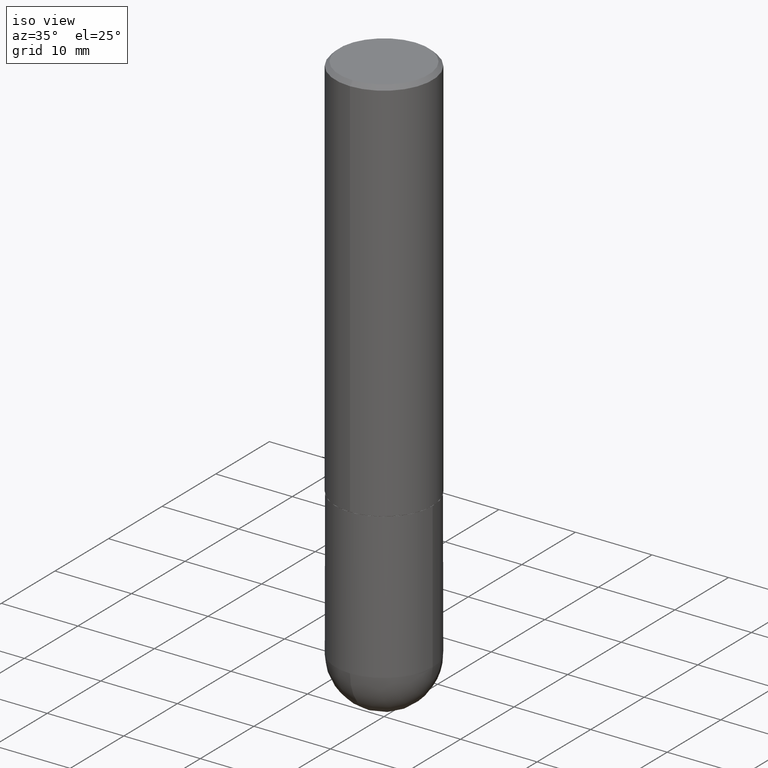
[diagram: clean part render]
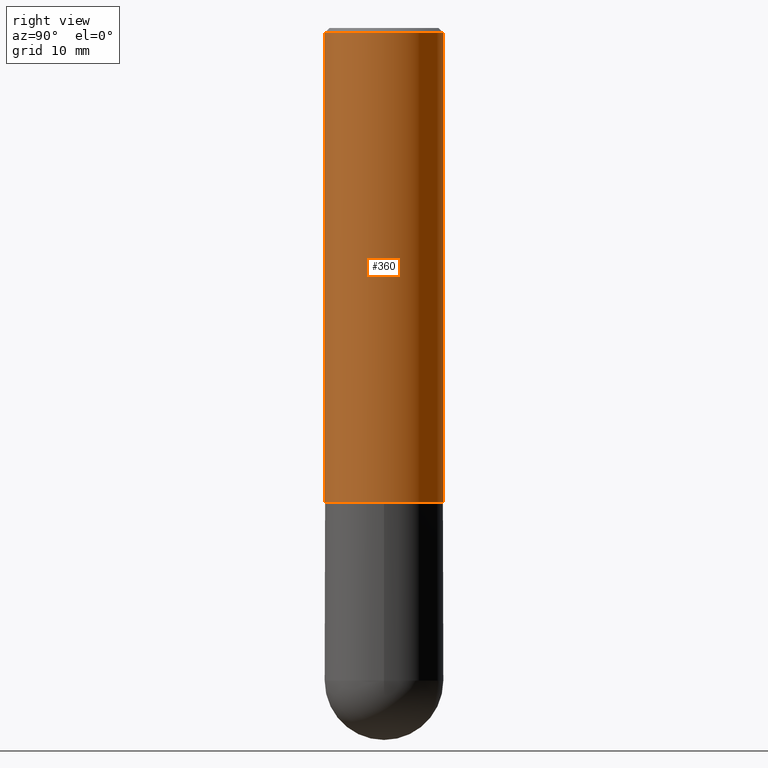
[diagram: tour spotlight — one face highlighted and labeled with its STEP entity id]
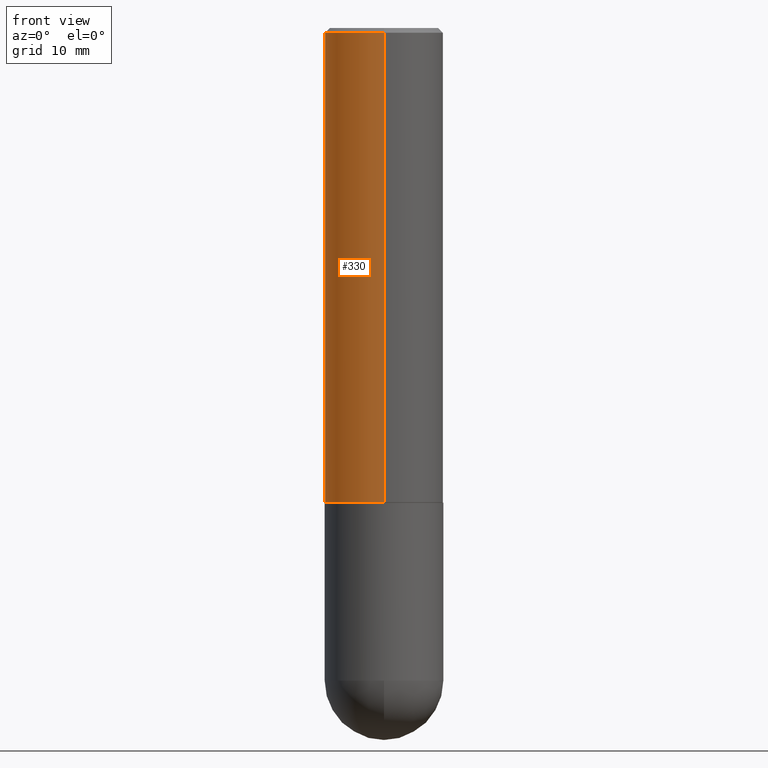
[diagram: tour spotlight — one face highlighted and labeled with its STEP entity id]
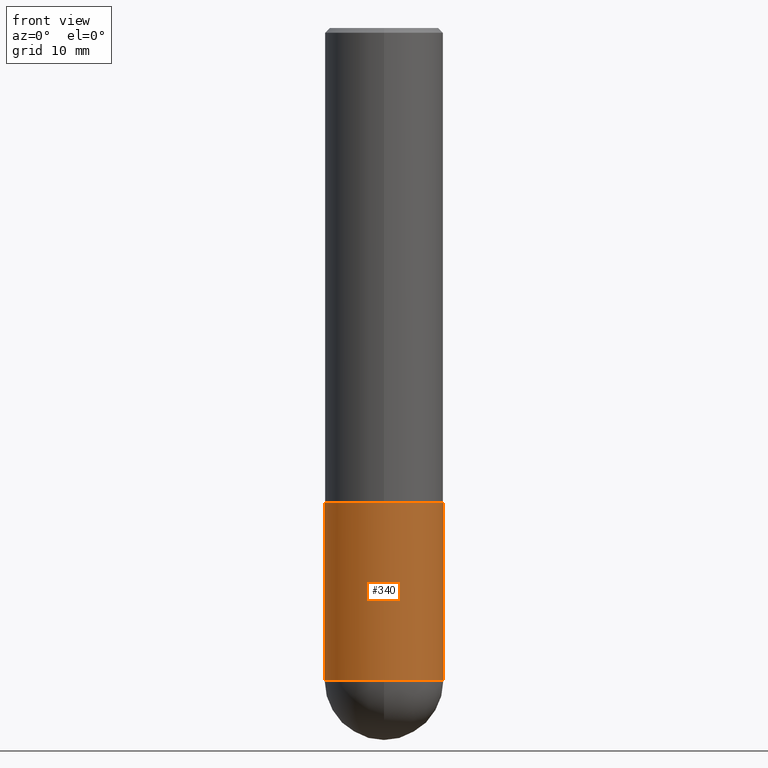
[diagram: tour spotlight — one face highlighted and labeled with its STEP entity id]
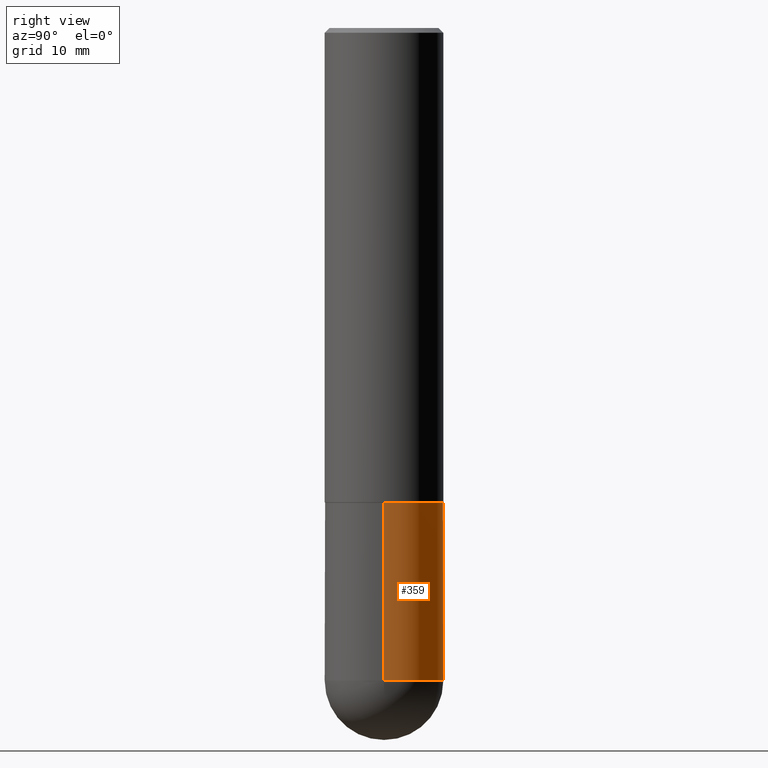
[diagram: tour spotlight — one face highlighted and labeled with its STEP entity id]
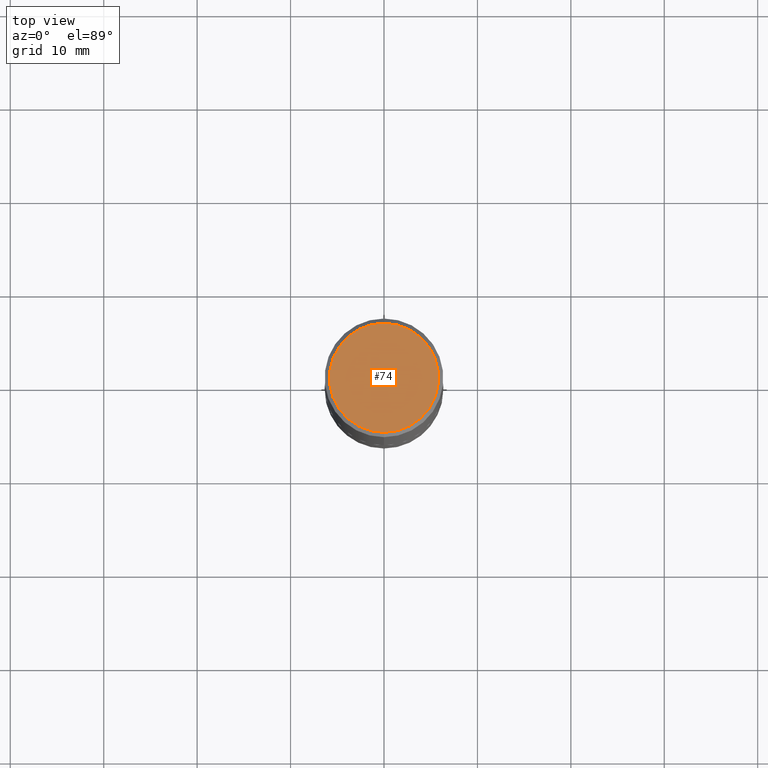
[diagram: tour spotlight — one face highlighted and labeled with its STEP entity id]
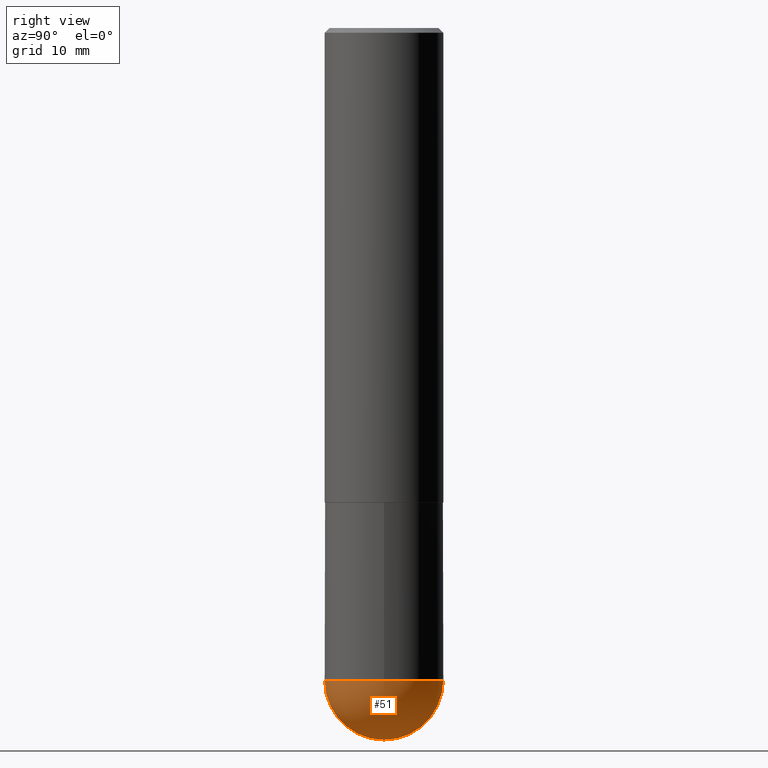
[diagram: tour spotlight — one face highlighted and labeled with its STEP entity id]
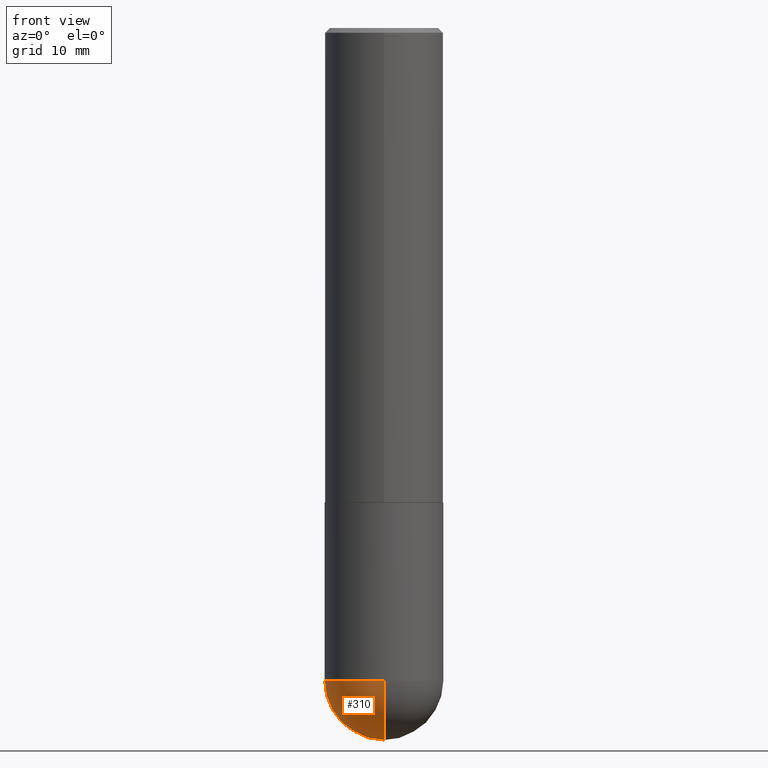
[diagram: tour spotlight — one face highlighted and labeled with its STEP entity id]
A machine part: a face-by-face anatomy tour. The part has 13 B-rep faces; the first image is the clean iso view, then the 7 largest visible faces are spotlighted one at a time (largest first), each with its STEP entity span.

Face 1 — right view, entity #360. In plain terms, the highlighted cylindrical surface (partial cylindrical patch) has radius 6.35 mm, axis along (-0, 0, 1).
Definition (entity closure, byte-faithful):
#4 = DIRECTION ( 'NONE',  ( -6.982962677686266711E-15, -1.000000000000000000, 3.490477036356359170E-15 ) ) ;
#6 = ORIENTED_EDGE ( 'NONE', *, *, #272, .F. ) ;
#28 = CARTESIAN_POINT ( 'NONE',  ( 1.745740669421567269E-15, 0.2499999999999999722, -0.02000000000000092676 ) ) ;
#34 = AXIS2_PLACEMENT_3D ( 'NONE', #322, #123, #4 ) ;
#35 = CARTESIAN_POINT ( 'NONE',  ( 1.776356839400251254E-15, 0.2500000000000001110, -8.726192590890901868E-16 ) ) ;
#38 = EDGE_CURVE ( 'NONE', #179, #175, #279, .T. ) ;
#77 = ORIENTED_EDGE ( 'NONE', *, *, #155, .T. ) ;
#81 = CARTESIAN_POINT ( 'NONE',  ( 4.889894043619877987E-29, -6.977463595676361972E-15, -1.999000000000000110 ) ) ;
#84 = DIRECTION ( 'NONE',  ( -6.982962677686266711E-15, -1.000000000000000000, 3.278217592397113101E-15 ) ) ;
#100 = DIRECTION ( 'NONE',  ( -2.446170106863370175E-29, 3.490477036356359564E-15, 1.000000000000000000 ) ) ;
#105 = VECTOR ( 'NONE', #100, 39.37007874015748143 ) ;
#118 = CIRCLE ( 'NONE', #345, 0.2500000000000000555 ) ;
#123 = DIRECTION ( 'NONE',  ( -2.446170106863370175E-29, 3.490477036356359170E-15, 1.000000000000000000 ) ) ;
#126 = DIRECTION ( 'NONE',  ( -2.446170106863370175E-29, 3.490477036356359170E-15, 1.000000000000000000 ) ) ;
#145 = EDGE_LOOP ( 'NONE', ( #301, #77, #6, #237 ) ) ;
#155 = EDGE_CURVE ( 'NONE', #175, #328, #380, .T. ) ;
#162 = DIRECTION ( 'NONE',  ( -6.982962677686265133E-15, -1.000000000000000000, 3.483106191921934765E-15 ) ) ;
#170 = FACE_OUTER_BOUND ( 'NONE', #145, .T. ) ;
#175 = VERTEX_POINT ( 'NONE', #193 ) ;
#179 = VERTEX_POINT ( 'NONE', #227 ) ;
#193 = CARTESIAN_POINT ( 'NONE',  ( 1.776356839400276497E-15, 0.2499999999999933109, -1.999000000000000998 ) ) ;
#227 = CARTESIAN_POINT ( 'NONE',  ( -1.745740669421519149E-15, -0.2500000000000072164, -1.998999999999999444 ) ) ;
#237 = ORIENTED_EDGE ( 'NONE', *, *, #325, .F. ) ;
#243 = CARTESIAN_POINT ( 'NONE',  ( -1.715124499442882496E-15, -0.2500000000000001110, -0.01999999999999918510 ) ) ;
#248 = CYLINDRICAL_SURFACE ( 'NONE', #34, 0.2500000000000001110 ) ;
#262 = AXIS2_PLACEMENT_3D ( 'NONE', #81, #336, #84 ) ;
#272 = EDGE_CURVE ( 'NONE', #402, #328, #118, .T. ) ;
#279 = CIRCLE ( 'NONE', #262, 0.2500000000000002220 ) ;
#281 = DIRECTION ( 'NONE',  ( -2.446170106863370175E-29, 3.490477036356359564E-15, 1.000000000000000000 ) ) ;
#301 = ORIENTED_EDGE ( 'NONE', *, *, #38, .T. ) ;
#322 = CARTESIAN_POINT ( 'NONE',  ( 0.000000000000000000, 0.000000000000000000, 0.000000000000000000 ) ) ;
#325 = EDGE_CURVE ( 'NONE', #179, #402, #397, .T. ) ;
#327 = CARTESIAN_POINT ( 'NONE',  ( 4.892340213726754154E-31, -6.980954072712737814E-17, -0.02000000000000005593 ) ) ;
#328 = VERTEX_POINT ( 'NONE', #28 ) ;
#336 = DIRECTION ( 'NONE',  ( -2.446170106863370175E-29, 3.490477036356359170E-15, 1.000000000000000000 ) ) ;
#345 = AXIS2_PLACEMENT_3D ( 'NONE', #327, #126, #162 ) ;
#360 = ADVANCED_FACE ( 'NONE', ( #170 ), #248, .T. ) ;
#380 = LINE ( 'NONE', #35, #105 ) ;
#397 = LINE ( 'NONE', #400, #401 ) ;
#400 = CARTESIAN_POINT ( 'NONE',  ( -1.745740669421567467E-15, -0.2500000000000001110, 8.726192590890901868E-16 ) ) ;
#401 = VECTOR ( 'NONE', #281, 39.37007874015748143 ) ;
#402 = VERTEX_POINT ( 'NONE', #243 ) ;

Face 2 — front view, entity #330. In plain terms, the highlighted cylindrical surface (partial cylindrical patch) has radius 6.35 mm, axis along (-0, 0, 1).
Definition (entity closure, byte-faithful):
#28 = CARTESIAN_POINT ( 'NONE',  ( 1.745740669421567269E-15, 0.2499999999999999722, -0.02000000000000092676 ) ) ;
#35 = CARTESIAN_POINT ( 'NONE',  ( 1.776356839400251254E-15, 0.2500000000000001110, -8.726192590890901868E-16 ) ) ;
#50 = CIRCLE ( 'NONE', #82, 0.2500000000000000555 ) ;
#63 = CYLINDRICAL_SURFACE ( 'NONE', #183, 0.2500000000000001110 ) ;
#82 = AXIS2_PLACEMENT_3D ( 'NONE', #285, #411, #410 ) ;
#100 = DIRECTION ( 'NONE',  ( -2.446170106863370175E-29, 3.490477036356359564E-15, 1.000000000000000000 ) ) ;
#105 = VECTOR ( 'NONE', #100, 39.37007874015748143 ) ;
#110 = DIRECTION ( 'NONE',  ( -2.446170106863370175E-29, 3.490477036356359170E-15, 1.000000000000000000 ) ) ;
#133 = ORIENTED_EDGE ( 'NONE', *, *, #325, .T. ) ;
#150 = DIRECTION ( 'NONE',  ( -6.982962677686266711E-15, -1.000000000000000000, 3.490477036356359170E-15 ) ) ;
#155 = EDGE_CURVE ( 'NONE', #175, #328, #380, .T. ) ;
#160 = CIRCLE ( 'NONE', #240, 0.2500000000000002220 ) ;
#161 = ORIENTED_EDGE ( 'NONE', *, *, #182, .T. ) ;
#175 = VERTEX_POINT ( 'NONE', #193 ) ;
#179 = VERTEX_POINT ( 'NONE', #227 ) ;
#182 = EDGE_CURVE ( 'NONE', #175, #179, #160, .T. ) ;
#183 = AXIS2_PLACEMENT_3D ( 'NONE', #375, #110, #150 ) ;
#185 = EDGE_CURVE ( 'NONE', #328, #402, #50, .T. ) ;
#189 = CARTESIAN_POINT ( 'NONE',  ( 4.889894043619877987E-29, -6.977463595676361972E-15, -1.999000000000000110 ) ) ;
#193 = CARTESIAN_POINT ( 'NONE',  ( 1.776356839400276497E-15, 0.2499999999999933109, -1.999000000000000998 ) ) ;
#198 = EDGE_LOOP ( 'NONE', ( #294, #161, #133, #313 ) ) ;
#227 = CARTESIAN_POINT ( 'NONE',  ( -1.745740669421519149E-15, -0.2500000000000072164, -1.998999999999999444 ) ) ;
#240 = AXIS2_PLACEMENT_3D ( 'NONE', #189, #323, #355 ) ;
#243 = CARTESIAN_POINT ( 'NONE',  ( -1.715124499442882496E-15, -0.2500000000000001110, -0.01999999999999918510 ) ) ;
#281 = DIRECTION ( 'NONE',  ( -2.446170106863370175E-29, 3.490477036356359564E-15, 1.000000000000000000 ) ) ;
#285 = CARTESIAN_POINT ( 'NONE',  ( 4.892340213726754154E-31, -6.980954072712737814E-17, -0.02000000000000005593 ) ) ;
#294 = ORIENTED_EDGE ( 'NONE', *, *, #155, .F. ) ;
#313 = ORIENTED_EDGE ( 'NONE', *, *, #185, .F. ) ;
#323 = DIRECTION ( 'NONE',  ( -2.446170106863370175E-29, 3.490477036356359170E-15, 1.000000000000000000 ) ) ;
#325 = EDGE_CURVE ( 'NONE', #179, #402, #397, .T. ) ;
#328 = VERTEX_POINT ( 'NONE', #28 ) ;
#330 = ADVANCED_FACE ( 'NONE', ( #370 ), #63, .T. ) ;
#355 = DIRECTION ( 'NONE',  ( -6.982962677686266711E-15, -1.000000000000000000, 3.278217592397113101E-15 ) ) ;
#370 = FACE_OUTER_BOUND ( 'NONE', #198, .T. ) ;
#375 = CARTESIAN_POINT ( 'NONE',  ( 0.000000000000000000, 0.000000000000000000, 0.000000000000000000 ) ) ;
#380 = LINE ( 'NONE', #35, #105 ) ;
#397 = LINE ( 'NONE', #400, #401 ) ;
#400 = CARTESIAN_POINT ( 'NONE',  ( -1.745740669421567467E-15, -0.2500000000000001110, 8.726192590890901868E-16 ) ) ;
#401 = VECTOR ( 'NONE', #281, 39.37007874015748143 ) ;
#402 = VERTEX_POINT ( 'NONE', #243 ) ;
#410 = DIRECTION ( 'NONE',  ( -6.982962677686265133E-15, -1.000000000000000000, 3.483106191921934765E-15 ) ) ;
#411 = DIRECTION ( 'NONE',  ( -2.446170106863370175E-29, 3.490477036356359170E-15, 1.000000000000000000 ) ) ;

Face 3 — front view, entity #340. In plain terms, the highlighted cylindrical surface (partial cylindrical patch) has radius 6.35 mm, axis along (-0, 0, 1).
Definition (entity closure, byte-faithful):
#3 = CARTESIAN_POINT ( 'NONE',  ( -0.2500000000000000000, -6.515911340352222809E-15, -2.750000000000000444 ) ) ;
#13 = VERTEX_POINT ( 'NONE', #395 ) ;
#23 = ORIENTED_EDGE ( 'NONE', *, *, #245, .T. ) ;
#24 = CIRCLE ( 'NONE', #257, 0.2500000000000000000 ) ;
#53 = DIRECTION ( 'NONE',  ( -2.445468806185136597E-29, 3.491481338843145583E-15, 1.000000000000000000 ) ) ;
#65 = DIRECTION ( 'NONE',  ( 1.000000000000000000, -6.982962677686270655E-15, 0.000000000000000000 ) ) ;
#80 = CARTESIAN_POINT ( 'NONE',  ( 6.725039217009125641E-29, -9.601573681818653015E-15, -2.750000000000000444 ) ) ;
#83 = FACE_OUTER_BOUND ( 'NONE', #232, .T. ) ;
#85 = CYLINDRICAL_SURFACE ( 'NONE', #305, 0.2500000000000000000 ) ;
#90 = VECTOR ( 'NONE', #124, 39.37007874015748143 ) ;
#101 = EDGE_CURVE ( 'NONE', #311, #112, #270, .T. ) ;
#112 = VERTEX_POINT ( 'NONE', #120 ) ;
#115 = DIRECTION ( 'NONE',  ( -2.445468806185136597E-29, 3.491481338843145583E-15, 1.000000000000000000 ) ) ;
#119 = CARTESIAN_POINT ( 'NONE',  ( -1.776356839400184989E-15, -0.2500000000000098810, -2.749999999999999556 ) ) ;
#120 = CARTESIAN_POINT ( 'NONE',  ( 0.2500000000000000000, -1.003800884917404153E-14, -2.750000000000000444 ) ) ;
#124 = DIRECTION ( 'NONE',  ( -2.445468806185136877E-29, 3.491481338843145188E-15, 1.000000000000000000 ) ) ;
#159 = LINE ( 'NONE', #383, #90 ) ;
#168 = ORIENTED_EDGE ( 'NONE', *, *, #317, .F. ) ;
#176 = DIRECTION ( 'NONE',  ( 1.000000000000000000, -6.982962677686266711E-15, 4.876176775795935793E-29 ) ) ;
#190 = VECTOR ( 'NONE', #275, 39.37007874015748143 ) ;
#195 = AXIS2_PLACEMENT_3D ( 'NONE', #80, #115, #65 ) ;
#202 = ORIENTED_EDGE ( 'NONE', *, *, #211, .T. ) ;
#211 = EDGE_CURVE ( 'NONE', #280, #311, #399, .T. ) ;
#231 = DIRECTION ( 'NONE',  ( 1.000000000000000000, -6.982962677686266711E-15, 0.000000000000000000 ) ) ;
#232 = EDGE_LOOP ( 'NONE', ( #168, #202, #365, #23, #266 ) ) ;
#245 = EDGE_CURVE ( 'NONE', #112, #268, #159, .T. ) ;
#255 = CARTESIAN_POINT ( 'NONE',  ( 6.725039217009125641E-29, -9.601573681818653015E-15, -2.750000000000000444 ) ) ;
#257 = AXIS2_PLACEMENT_3D ( 'NONE', #316, #386, #231 ) ;
#265 = EDGE_CURVE ( 'NONE', #13, #268, #24, .T. ) ;
#266 = ORIENTED_EDGE ( 'NONE', *, *, #265, .F. ) ;
#268 = VERTEX_POINT ( 'NONE', #388 ) ;
#270 = CIRCLE ( 'NONE', #195, 0.2500000000000000000 ) ;
#275 = DIRECTION ( 'NONE',  ( -2.445468806185136877E-29, 3.491481338843145188E-15, 1.000000000000000000 ) ) ;
#280 = VERTEX_POINT ( 'NONE', #3 ) ;
#283 = CARTESIAN_POINT ( 'NONE',  ( 0.000000000000000000, 0.000000000000000000, 0.000000000000000000 ) ) ;
#305 = AXIS2_PLACEMENT_3D ( 'NONE', #283, #53, #176 ) ;
#311 = VERTEX_POINT ( 'NONE', #119 ) ;
#314 = LINE ( 'NONE', #339, #190 ) ;
#316 = CARTESIAN_POINT ( 'NONE',  ( 4.890937612370273754E-29, -6.982962677686291954E-15, -2.000000000000000444 ) ) ;
#317 = EDGE_CURVE ( 'NONE', #280, #13, #314, .T. ) ;
#318 = DIRECTION ( 'NONE',  ( 1.000000000000000000, -6.982962677686270655E-15, 0.000000000000000000 ) ) ;
#319 = AXIS2_PLACEMENT_3D ( 'NONE', #255, #348, #318 ) ;
#339 = CARTESIAN_POINT ( 'NONE',  ( -0.2500000000000000000, 1.776356839400250465E-15, -1.229733772563726445E-29 ) ) ;
#340 = ADVANCED_FACE ( 'NONE', ( #83 ), #85, .T. ) ;
#348 = DIRECTION ( 'NONE',  ( -2.445468806185136597E-29, 3.491481338843145583E-15, 1.000000000000000000 ) ) ;
#365 = ORIENTED_EDGE ( 'NONE', *, *, #101, .T. ) ;
#383 = CARTESIAN_POINT ( 'NONE',  ( 0.2500000000000000000, -1.745740669421566678E-15, 1.219044193948983948E-29 ) ) ;
#386 = DIRECTION ( 'NONE',  ( -2.445468806185136597E-29, 3.491481338843145583E-15, 1.000000000000000000 ) ) ;
#388 = CARTESIAN_POINT ( 'NONE',  ( 0.2500000000000000000, -8.728703347107858632E-15, -2.000000000000000444 ) ) ;
#395 = CARTESIAN_POINT ( 'NONE',  ( -0.2500000000000000000, -6.515911340352221231E-15, -2.000000000000000444 ) ) ;
#399 = CIRCLE ( 'NONE', #319, 0.2500000000000000000 ) ;

Face 4 — right view, entity #359. In plain terms, the highlighted cylindrical surface (partial cylindrical patch) has radius 6.35 mm, axis along (-0, 0, 1).
Definition (entity closure, byte-faithful):
#3 = CARTESIAN_POINT ( 'NONE',  ( -0.2500000000000000000, -6.515911340352222809E-15, -2.750000000000000444 ) ) ;
#13 = VERTEX_POINT ( 'NONE', #395 ) ;
#16 = CARTESIAN_POINT ( 'NONE',  ( 1.745740669421632745E-15, 0.2499999999999902300, -2.750000000000001332 ) ) ;
#21 = DIRECTION ( 'NONE',  ( -2.445468806185136597E-29, 3.491481338843145583E-15, 1.000000000000000000 ) ) ;
#26 = ORIENTED_EDGE ( 'NONE', *, *, #245, .F. ) ;
#40 = VERTEX_POINT ( 'NONE', #16 ) ;
#48 = CARTESIAN_POINT ( 'NONE',  ( 0.000000000000000000, 0.000000000000000000, 0.000000000000000000 ) ) ;
#69 = EDGE_CURVE ( 'NONE', #112, #40, #389, .T. ) ;
#72 = CIRCLE ( 'NONE', #385, 0.2500000000000000000 ) ;
#90 = VECTOR ( 'NONE', #124, 39.37007874015748143 ) ;
#112 = VERTEX_POINT ( 'NONE', #120 ) ;
#120 = CARTESIAN_POINT ( 'NONE',  ( 0.2500000000000000000, -1.003800884917404153E-14, -2.750000000000000444 ) ) ;
#121 = DIRECTION ( 'NONE',  ( 1.000000000000000000, -6.982962677686266711E-15, 4.876176775795935793E-29 ) ) ;
#124 = DIRECTION ( 'NONE',  ( -2.445468806185136877E-29, 3.491481338843145188E-15, 1.000000000000000000 ) ) ;
#125 = AXIS2_PLACEMENT_3D ( 'NONE', #48, #368, #121 ) ;
#131 = ORIENTED_EDGE ( 'NONE', *, *, #69, .T. ) ;
#143 = DIRECTION ( 'NONE',  ( 1.000000000000000000, -6.982962677686270655E-15, 0.000000000000000000 ) ) ;
#153 = CARTESIAN_POINT ( 'NONE',  ( 4.890937612370273754E-29, -6.982962677686291954E-15, -2.000000000000000444 ) ) ;
#159 = LINE ( 'NONE', #383, #90 ) ;
#173 = EDGE_CURVE ( 'NONE', #268, #13, #72, .T. ) ;
#190 = VECTOR ( 'NONE', #275, 39.37007874015748143 ) ;
#217 = CIRCLE ( 'NONE', #409, 0.2500000000000000000 ) ;
#244 = ORIENTED_EDGE ( 'NONE', *, *, #317, .T. ) ;
#245 = EDGE_CURVE ( 'NONE', #112, #268, #159, .T. ) ;
#268 = VERTEX_POINT ( 'NONE', #388 ) ;
#273 = CARTESIAN_POINT ( 'NONE',  ( 6.725039217009125641E-29, -9.601573681818653015E-15, -2.750000000000000444 ) ) ;
#275 = DIRECTION ( 'NONE',  ( -2.445468806185136877E-29, 3.491481338843145188E-15, 1.000000000000000000 ) ) ;
#278 = FACE_OUTER_BOUND ( 'NONE', #357, .T. ) ;
#280 = VERTEX_POINT ( 'NONE', #3 ) ;
#309 = CARTESIAN_POINT ( 'NONE',  ( 6.725039217009125641E-29, -9.601573681818653015E-15, -2.750000000000000444 ) ) ;
#314 = LINE ( 'NONE', #339, #190 ) ;
#317 = EDGE_CURVE ( 'NONE', #280, #13, #314, .T. ) ;
#321 = DIRECTION ( 'NONE',  ( 1.000000000000000000, -6.982962677686266711E-15, 0.000000000000000000 ) ) ;
#326 = ORIENTED_EDGE ( 'NONE', *, *, #354, .T. ) ;
#339 = CARTESIAN_POINT ( 'NONE',  ( -0.2500000000000000000, 1.776356839400250465E-15, -1.229733772563726445E-29 ) ) ;
#352 = AXIS2_PLACEMENT_3D ( 'NONE', #273, #367, #396 ) ;
#354 = EDGE_CURVE ( 'NONE', #40, #280, #217, .T. ) ;
#357 = EDGE_LOOP ( 'NONE', ( #326, #244, #361, #26, #131 ) ) ;
#359 = ADVANCED_FACE ( 'NONE', ( #278 ), #387, .T. ) ;
#361 = ORIENTED_EDGE ( 'NONE', *, *, #173, .F. ) ;
#367 = DIRECTION ( 'NONE',  ( -2.445468806185136597E-29, 3.491481338843145583E-15, 1.000000000000000000 ) ) ;
#368 = DIRECTION ( 'NONE',  ( -2.445468806185136597E-29, 3.491481338843145583E-15, 1.000000000000000000 ) ) ;
#383 = CARTESIAN_POINT ( 'NONE',  ( 0.2500000000000000000, -1.745740669421566678E-15, 1.219044193948983948E-29 ) ) ;
#385 = AXIS2_PLACEMENT_3D ( 'NONE', #153, #406, #321 ) ;
#387 = CYLINDRICAL_SURFACE ( 'NONE', #125, 0.2500000000000000000 ) ;
#388 = CARTESIAN_POINT ( 'NONE',  ( 0.2500000000000000000, -8.728703347107858632E-15, -2.000000000000000444 ) ) ;
#389 = CIRCLE ( 'NONE', #352, 0.2500000000000000000 ) ;
#395 = CARTESIAN_POINT ( 'NONE',  ( -0.2500000000000000000, -6.515911340352221231E-15, -2.000000000000000444 ) ) ;
#396 = DIRECTION ( 'NONE',  ( 1.000000000000000000, -6.982962677686270655E-15, 0.000000000000000000 ) ) ;
#406 = DIRECTION ( 'NONE',  ( -2.445468806185136597E-29, 3.491481338843145583E-15, 1.000000000000000000 ) ) ;
#409 = AXIS2_PLACEMENT_3D ( 'NONE', #309, #21, #143 ) ;

Face 5 — top view, entity #74. In plain terms, the highlighted planar face has unit normal (0, -0, -1).
Definition (entity closure, byte-faithful):
#1 = DIRECTION ( 'NONE',  ( -2.446170106863370175E-29, 3.490477036356359170E-15, 1.000000000000000000 ) ) ;
#18 = VERTEX_POINT ( 'NONE', #213 ) ;
#55 = DIRECTION ( 'NONE',  ( 6.982962677686265922E-15, 1.000000000000000000, -3.490477036356359564E-15 ) ) ;
#56 = VERTEX_POINT ( 'NONE', #207 ) ;
#60 = DIRECTION ( 'NONE',  ( -6.982962677686265922E-15, -1.000000000000000000, 3.490477036356359564E-15 ) ) ;
#62 = CARTESIAN_POINT ( 'NONE',  ( -3.440047127979384155E-45, 4.908655154645937687E-31, 1.406299226013526948E-16 ) ) ;
#74 = ADVANCED_FACE ( 'NONE', ( #344 ), #302, .F. ) ;
#76 = AXIS2_PLACEMENT_3D ( 'NONE', #204, #343, #55 ) ;
#99 = CIRCLE ( 'NONE', #331, 0.2299999999999998712 ) ;
#103 = ORIENTED_EDGE ( 'NONE', *, *, #253, .T. ) ;
#106 = EDGE_LOOP ( 'NONE', ( #103, #267 ) ) ;
#157 = DIRECTION ( 'NONE',  ( -2.446170106863370175E-29, 3.490477036356359170E-15, 1.000000000000000000 ) ) ;
#158 = DIRECTION ( 'NONE',  ( -6.982962677686265922E-15, -1.000000000000000000, 3.490477036356359564E-15 ) ) ;
#204 = CARTESIAN_POINT ( 'NONE',  ( 1.606081415867840278E-15, 0.2299999999999998712, -7.324947570612858819E-16 ) ) ;
#207 = CARTESIAN_POINT ( 'NONE',  ( -1.646519519465166770E-15, -0.2299999999999998712, 9.434396409633149982E-16 ) ) ;
#213 = CARTESIAN_POINT ( 'NONE',  ( 1.675911042644703774E-15, 0.2299999999999998712, -6.621797957606095099E-16 ) ) ;
#214 = EDGE_CURVE ( 'NONE', #56, #18, #286, .T. ) ;
#224 = CARTESIAN_POINT ( 'NONE',  ( -3.440047127979384155E-45, 4.908655154645937687E-31, 1.406299226013526948E-16 ) ) ;
#253 = EDGE_CURVE ( 'NONE', #18, #56, #99, .T. ) ;
#267 = ORIENTED_EDGE ( 'NONE', *, *, #214, .T. ) ;
#286 = CIRCLE ( 'NONE', #369, 0.2299999999999998712 ) ;
#302 = PLANE ( 'NONE',  #76 ) ;
#331 = AXIS2_PLACEMENT_3D ( 'NONE', #224, #157, #60 ) ;
#343 = DIRECTION ( 'NONE',  ( 2.446170106863369615E-29, -3.490477036356359564E-15, -1.000000000000000000 ) ) ;
#344 = FACE_OUTER_BOUND ( 'NONE', #106, .T. ) ;
#369 = AXIS2_PLACEMENT_3D ( 'NONE', #62, #1, #158 ) ;

Face 6 — right view, entity #51. In plain terms, the highlighted spherical surface has radius 6.35 mm.
Definition (entity closure, byte-faithful):
#16 = CARTESIAN_POINT ( 'NONE',  ( 1.745740669421632745E-15, 0.2499999999999902300, -2.750000000000001332 ) ) ;
#20 = ORIENTED_EDGE ( 'NONE', *, *, #97, .F. ) ;
#39 = AXIS2_PLACEMENT_3D ( 'NONE', #180, #210, #282 ) ;
#40 = VERTEX_POINT ( 'NONE', #16 ) ;
#46 = ORIENTED_EDGE ( 'NONE', *, *, #142, .T. ) ;
#51 = ADVANCED_FACE ( 'NONE', ( #239 ), #139, .T. ) ;
#65 = DIRECTION ( 'NONE',  ( 1.000000000000000000, -6.982962677686270655E-15, 0.000000000000000000 ) ) ;
#68 = DIRECTION ( 'NONE',  ( 6.982962677686266711E-15, 1.000000000000000000, 0.000000000000000000 ) ) ;
#69 = EDGE_CURVE ( 'NONE', #112, #40, #389, .T. ) ;
#80 = CARTESIAN_POINT ( 'NONE',  ( 6.725039217009125641E-29, -9.601573681818653015E-15, -2.750000000000000444 ) ) ;
#97 = EDGE_CURVE ( 'NONE', #334, #311, #136, .T. ) ;
#101 = EDGE_CURVE ( 'NONE', #311, #112, #270, .T. ) ;
#107 = CARTESIAN_POINT ( 'NONE',  ( 6.393919439095240515E-29, -1.007575604995870173E-14, -2.750000000000000444 ) ) ;
#112 = VERTEX_POINT ( 'NONE', #120 ) ;
#114 = ORIENTED_EDGE ( 'NONE', *, *, #69, .F. ) ;
#115 = DIRECTION ( 'NONE',  ( -2.445468806185136597E-29, 3.491481338843145583E-15, 1.000000000000000000 ) ) ;
#119 = CARTESIAN_POINT ( 'NONE',  ( -1.776356839400184989E-15, -0.2500000000000098810, -2.749999999999999556 ) ) ;
#120 = CARTESIAN_POINT ( 'NONE',  ( 0.2500000000000000000, -1.003800884917404153E-14, -2.750000000000000444 ) ) ;
#122 = CARTESIAN_POINT ( 'NONE',  ( 6.393919439095240515E-29, -1.007575604995870173E-14, -2.750000000000000444 ) ) ;
#136 = CIRCLE ( 'NONE', #228, 0.2500000000000001110 ) ;
#139 = SPHERICAL_SURFACE ( 'NONE', #39, 0.2500000000000001110 ) ;
#142 = EDGE_CURVE ( 'NONE', #334, #40, #206, .T. ) ;
#146 = AXIS2_PLACEMENT_3D ( 'NONE', #122, #216, #68 ) ;
#147 = CARTESIAN_POINT ( 'NONE',  ( 7.015976219256266741E-29, -1.093331829968014633E-14, -3.000000000000000888 ) ) ;
#180 = CARTESIAN_POINT ( 'NONE',  ( 6.393919439095240515E-29, -1.007575604995870173E-14, -2.750000000000000444 ) ) ;
#195 = AXIS2_PLACEMENT_3D ( 'NONE', #80, #115, #65 ) ;
#206 = CIRCLE ( 'NONE', #146, 0.2500000000000001110 ) ;
#210 = DIRECTION ( 'NONE',  ( -1.000000000000000000, 6.982962677686265922E-15, -4.883557194083113462E-29 ) ) ;
#216 = DIRECTION ( 'NONE',  ( 1.000000000000000000, -6.982962677686265922E-15, 4.883557194083112340E-29 ) ) ;
#228 = AXIS2_PLACEMENT_3D ( 'NONE', #107, #238, #366 ) ;
#238 = DIRECTION ( 'NONE',  ( -1.000000000000000000, 7.105427357601001070E-15, -4.926315508542082329E-29 ) ) ;
#239 = FACE_OUTER_BOUND ( 'NONE', #391, .T. ) ;
#270 = CIRCLE ( 'NONE', #195, 0.2500000000000000000 ) ;
#273 = CARTESIAN_POINT ( 'NONE',  ( 6.725039217009125641E-29, -9.601573681818653015E-15, -2.750000000000000444 ) ) ;
#282 = DIRECTION ( 'NONE',  ( 6.982962677686265922E-15, 1.000000000000000000, -4.370956789862818783E-15 ) ) ;
#296 = ORIENTED_EDGE ( 'NONE', *, *, #101, .F. ) ;
#311 = VERTEX_POINT ( 'NONE', #119 ) ;
#334 = VERTEX_POINT ( 'NONE', #147 ) ;
#352 = AXIS2_PLACEMENT_3D ( 'NONE', #273, #367, #396 ) ;
#366 = DIRECTION ( 'NONE',  ( -7.105427357601001859E-15, -1.000000000000000000, 0.000000000000000000 ) ) ;
#367 = DIRECTION ( 'NONE',  ( -2.445468806185136597E-29, 3.491481338843145583E-15, 1.000000000000000000 ) ) ;
#389 = CIRCLE ( 'NONE', #352, 0.2500000000000000000 ) ;
#391 = EDGE_LOOP ( 'NONE', ( #20, #46, #114, #296 ) ) ;
#396 = DIRECTION ( 'NONE',  ( 1.000000000000000000, -6.982962677686270655E-15, 0.000000000000000000 ) ) ;

Face 7 — front view, entity #310. In plain terms, the highlighted spherical surface has radius 6.35 mm.
Definition (entity closure, byte-faithful):
#3 = CARTESIAN_POINT ( 'NONE',  ( -0.2500000000000000000, -6.515911340352222809E-15, -2.750000000000000444 ) ) ;
#16 = CARTESIAN_POINT ( 'NONE',  ( 1.745740669421632745E-15, 0.2499999999999902300, -2.750000000000001332 ) ) ;
#21 = DIRECTION ( 'NONE',  ( -2.445468806185136597E-29, 3.491481338843145583E-15, 1.000000000000000000 ) ) ;
#30 = DIRECTION ( 'NONE',  ( 6.982962677686265922E-15, 1.000000000000000000, -4.370956789862818783E-15 ) ) ;
#40 = VERTEX_POINT ( 'NONE', #16 ) ;
#57 = CARTESIAN_POINT ( 'NONE',  ( 6.393919439095240515E-29, -1.007575604995870173E-14, -2.750000000000000444 ) ) ;
#68 = DIRECTION ( 'NONE',  ( 6.982962677686266711E-15, 1.000000000000000000, 0.000000000000000000 ) ) ;
#71 = EDGE_LOOP ( 'NONE', ( #200, #398, #86, #79 ) ) ;
#79 = ORIENTED_EDGE ( 'NONE', *, *, #354, .F. ) ;
#86 = ORIENTED_EDGE ( 'NONE', *, *, #211, .F. ) ;
#97 = EDGE_CURVE ( 'NONE', #334, #311, #136, .T. ) ;
#107 = CARTESIAN_POINT ( 'NONE',  ( 6.393919439095240515E-29, -1.007575604995870173E-14, -2.750000000000000444 ) ) ;
#119 = CARTESIAN_POINT ( 'NONE',  ( -1.776356839400184989E-15, -0.2500000000000098810, -2.749999999999999556 ) ) ;
#122 = CARTESIAN_POINT ( 'NONE',  ( 6.393919439095240515E-29, -1.007575604995870173E-14, -2.750000000000000444 ) ) ;
#136 = CIRCLE ( 'NONE', #228, 0.2500000000000001110 ) ;
#142 = EDGE_CURVE ( 'NONE', #334, #40, #206, .T. ) ;
#143 = DIRECTION ( 'NONE',  ( 1.000000000000000000, -6.982962677686270655E-15, 0.000000000000000000 ) ) ;
#146 = AXIS2_PLACEMENT_3D ( 'NONE', #122, #216, #68 ) ;
#147 = CARTESIAN_POINT ( 'NONE',  ( 7.015976219256266741E-29, -1.093331829968014633E-14, -3.000000000000000888 ) ) ;
#154 = DIRECTION ( 'NONE',  ( -1.000000000000000000, 6.982962677686265922E-15, -4.883557194083113462E-29 ) ) ;
#200 = ORIENTED_EDGE ( 'NONE', *, *, #142, .F. ) ;
#206 = CIRCLE ( 'NONE', #146, 0.2500000000000001110 ) ;
#211 = EDGE_CURVE ( 'NONE', #280, #311, #399, .T. ) ;
#216 = DIRECTION ( 'NONE',  ( 1.000000000000000000, -6.982962677686265922E-15, 4.883557194083112340E-29 ) ) ;
#217 = CIRCLE ( 'NONE', #409, 0.2500000000000000000 ) ;
#218 = SPHERICAL_SURFACE ( 'NONE', #347, 0.2500000000000001110 ) ;
#222 = FACE_OUTER_BOUND ( 'NONE', #71, .T. ) ;
#228 = AXIS2_PLACEMENT_3D ( 'NONE', #107, #238, #366 ) ;
#238 = DIRECTION ( 'NONE',  ( -1.000000000000000000, 7.105427357601001070E-15, -4.926315508542082329E-29 ) ) ;
#255 = CARTESIAN_POINT ( 'NONE',  ( 6.725039217009125641E-29, -9.601573681818653015E-15, -2.750000000000000444 ) ) ;
#280 = VERTEX_POINT ( 'NONE', #3 ) ;
#309 = CARTESIAN_POINT ( 'NONE',  ( 6.725039217009125641E-29, -9.601573681818653015E-15, -2.750000000000000444 ) ) ;
#310 = ADVANCED_FACE ( 'NONE', ( #222 ), #218, .T. ) ;
#311 = VERTEX_POINT ( 'NONE', #119 ) ;
#318 = DIRECTION ( 'NONE',  ( 1.000000000000000000, -6.982962677686270655E-15, 0.000000000000000000 ) ) ;
#319 = AXIS2_PLACEMENT_3D ( 'NONE', #255, #348, #318 ) ;
#334 = VERTEX_POINT ( 'NONE', #147 ) ;
#347 = AXIS2_PLACEMENT_3D ( 'NONE', #57, #154, #30 ) ;
#348 = DIRECTION ( 'NONE',  ( -2.445468806185136597E-29, 3.491481338843145583E-15, 1.000000000000000000 ) ) ;
#354 = EDGE_CURVE ( 'NONE', #40, #280, #217, .T. ) ;
#366 = DIRECTION ( 'NONE',  ( -7.105427357601001859E-15, -1.000000000000000000, 0.000000000000000000 ) ) ;
#398 = ORIENTED_EDGE ( 'NONE', *, *, #97, .T. ) ;
#399 = CIRCLE ( 'NONE', #319, 0.2500000000000000000 ) ;
#409 = AXIS2_PLACEMENT_3D ( 'NONE', #309, #21, #143 ) ;